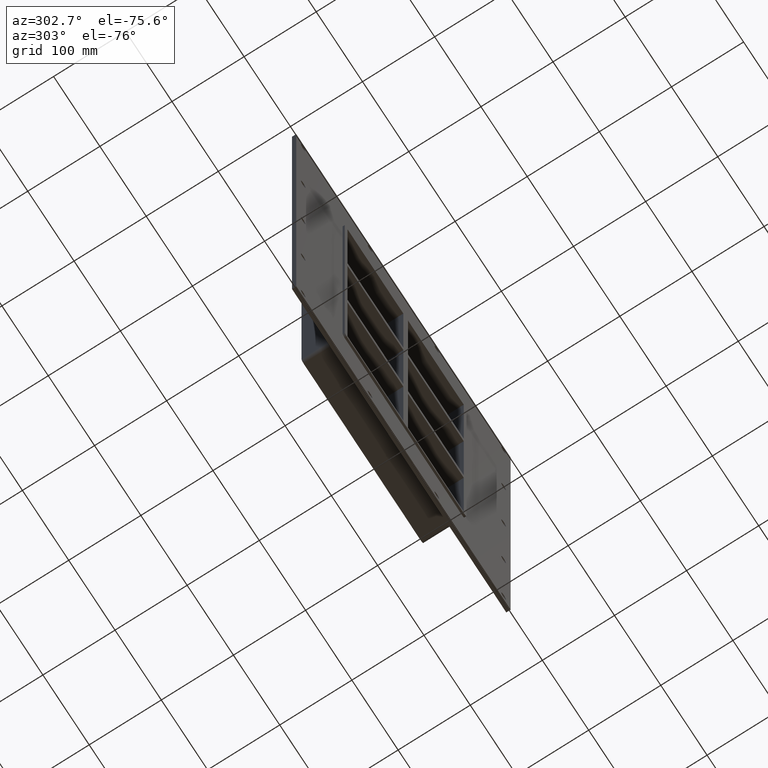
[diagram: clean part render]
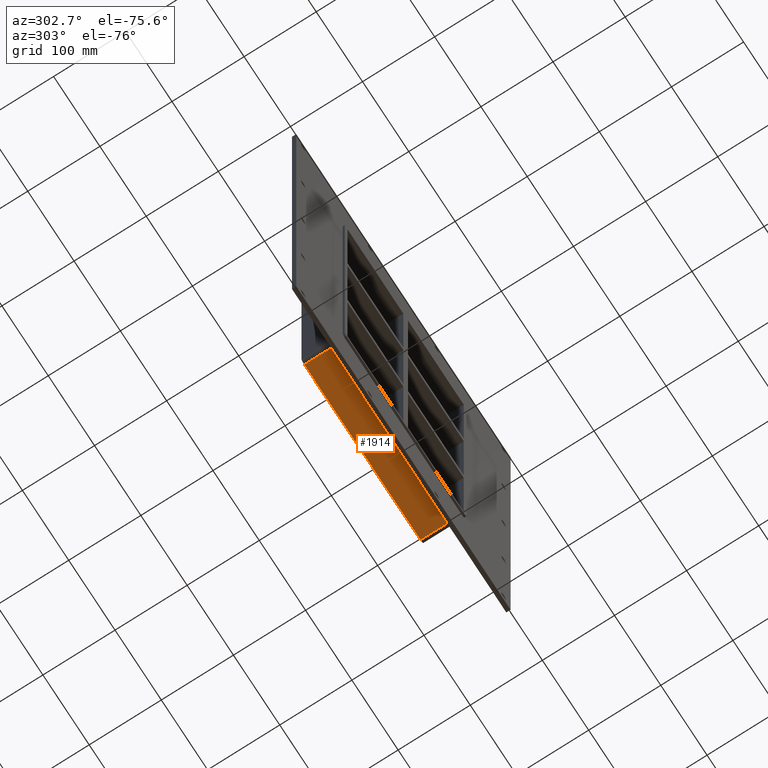
[diagram: same view with one face highlighted and labeled with its STEP entity id]
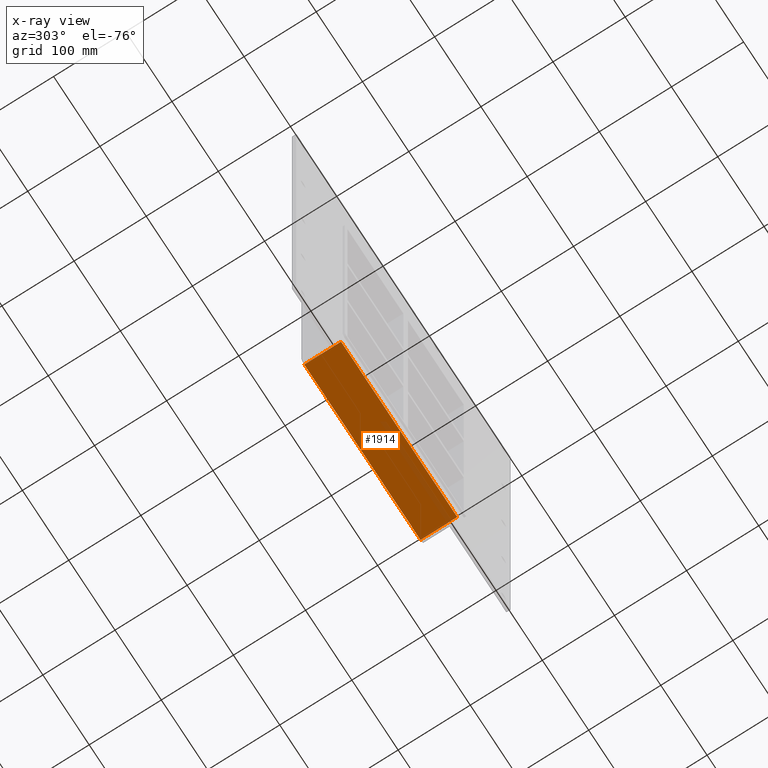
[diagram: x-ray of the same camera — body ghosted, the highlighted face saturated]
A machine part, auxiliary view. The second image highlights one B-rep face of the part: STEP entity #1914.
The next image is the same camera in x-ray: the body ghosted, the highlighted face saturated — about 7% of this face is hidden behind the body in this view.
In plain terms, the highlighted planar face has unit normal (0, 0, -1).
Its self-contained STEP definition (entity closure, byte-faithful):
#1006=CARTESIAN_POINT('',(125.5,57.0,-257.25));
#1007=VERTEX_POINT('',#1006);
#1017=CARTESIAN_POINT('',(-125.50000000000003,57.0,-257.25));
#1018=VERTEX_POINT('',#1017);
#1019=CARTESIAN_POINT('',(125.5,57.0,-257.25));
#1020=DIRECTION('',(-1.0,0.0,0.0));
#1021=VECTOR('',#1020,251.0);
#1022=LINE('',#1019,#1021);
#1023=EDGE_CURVE('',#1007,#1018,#1022,.T.);
#1380=CARTESIAN_POINT('',(-125.5,6.000000000000001,-257.25));
#1381=VERTEX_POINT('',#1380);
#1391=CARTESIAN_POINT('',(125.5,6.000000000000001,-257.25));
#1392=VERTEX_POINT('',#1391);
#1393=CARTESIAN_POINT('',(125.50000000000001,6.000000000000001,-257.25));
#1394=DIRECTION('',(-1.0,0.0,0.0));
#1395=VECTOR('',#1394,251.0);
#1396=LINE('',#1393,#1395);
#1397=EDGE_CURVE('',#1392,#1381,#1396,.T.);
#1838=CARTESIAN_POINT('',(125.5,6.000000000000001,-257.25));
#1839=DIRECTION('',(0.0,1.0,0.0));
#1840=VECTOR('',#1839,51.0);
#1841=LINE('',#1838,#1840);
#1842=EDGE_CURVE('',#1392,#1007,#1841,.T.);
#1898=CARTESIAN_POINT('',(131.5,0.0,-257.25));
#1899=DIRECTION('',(0.0,0.0,-1.0));
#1900=DIRECTION('',(-1.0,0.0,0.0));
#1901=AXIS2_PLACEMENT_3D('',#1898,#1899,#1900);
#1902=PLANE('',#1901);
#1903=ORIENTED_EDGE('',*,*,#1397,.T.);
#1904=CARTESIAN_POINT('',(-125.5,57.0,-257.25));
#1905=DIRECTION('',(0.0,-1.0,0.0));
#1906=VECTOR('',#1905,51.0);
#1907=LINE('',#1904,#1906);
#1908=EDGE_CURVE('',#1018,#1381,#1907,.T.);
#1909=ORIENTED_EDGE('',*,*,#1908,.F.);
#1910=ORIENTED_EDGE('',*,*,#1023,.F.);
#1911=ORIENTED_EDGE('',*,*,#1842,.F.);
#1912=EDGE_LOOP('',(#1903,#1909,#1910,#1911));
#1913=FACE_OUTER_BOUND('',#1912,.T.);
#1914=ADVANCED_FACE('',(#1913),#1902,.T.);